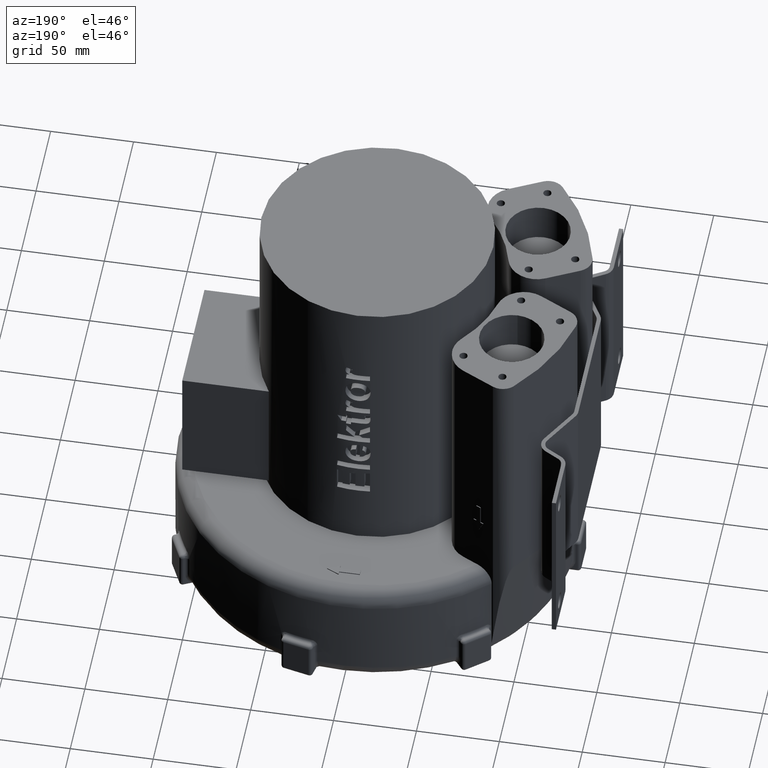
[diagram: clean part render]
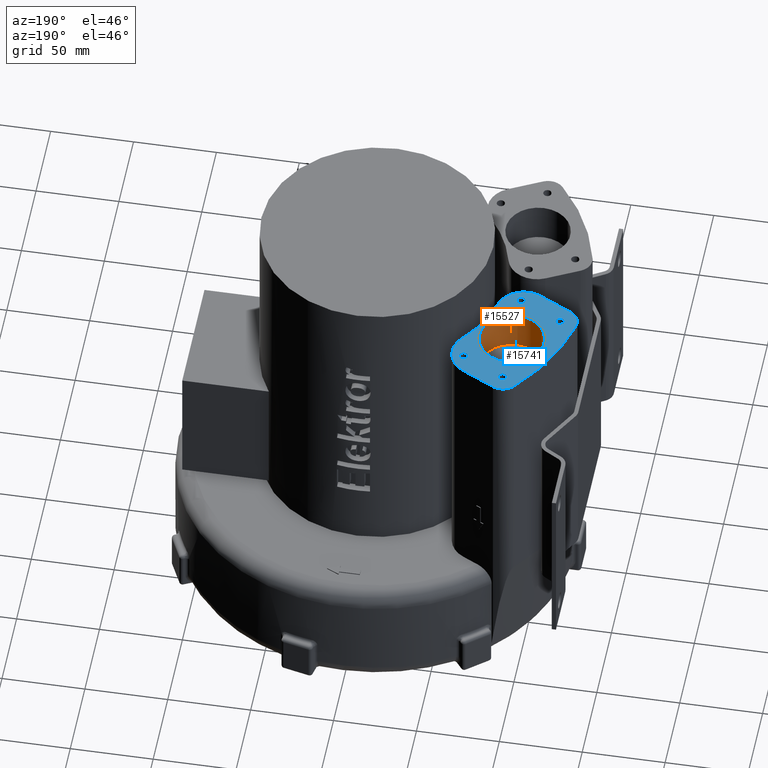
[diagram: same view with the hole feature highlighted: cylindrical wall and planar end face, labeled with their STEP entity ids]
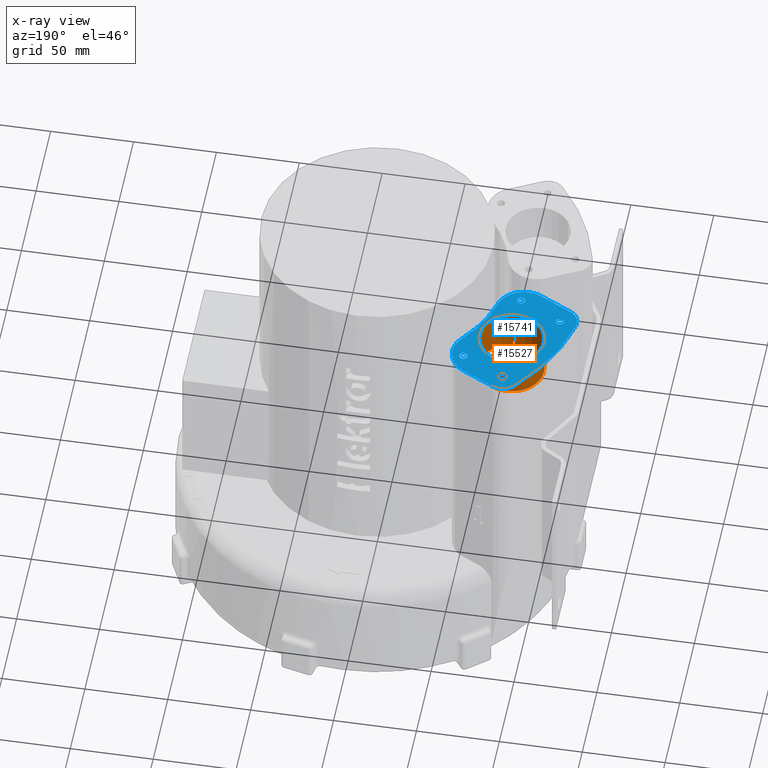
[diagram: x-ray of the same camera — body ghosted, the hole faces saturated]
A machine part, auxiliary view. The highlighted faces form one hole feature of diameter 38.952 mm: the cylindrical wall (entity #15527, orange) and its adjacent planar end face (entity #15741, blue) — they share a circular edge in the B-rep.
The next image is the same camera in x-ray (body ghosted, the hole faces saturated) — the bore reads through the body.
Wall:
#15500=CARTESIAN_POINT('',(-89.0,45.0,144.50000000000003));
#15501=DIRECTION('',(0.0,0.0,1.0));
#15502=DIRECTION('',(0.0,-1.0,0.0));
#15503=AXIS2_PLACEMENT_3D('',#15500,#15501,#15502);
#15504=CYLINDRICAL_SURFACE('',#15503,19.475999999999999);
#15505=CARTESIAN_POINT('',(-89.0,25.524000000000001,157.00000000000003));
#15506=VERTEX_POINT('',#15505);
#15507=CARTESIAN_POINT('',(-89.0,45.0,157.00000000000003));
#15508=DIRECTION('',(0.0,0.0,-1.0));
#15509=DIRECTION('',(0.0,-1.0,0.0));
#15510=AXIS2_PLACEMENT_3D('',#15507,#15508,#15509);
#15511=CIRCLE('',#15510,19.475999999999999);
#15512=EDGE_CURVE('',#15506,#15506,#15511,.T.);
#15513=ORIENTED_EDGE('',*,*,#15512,.F.);
#15514=EDGE_LOOP('',(#15513));
#15515=FACE_OUTER_BOUND('',#15514,.T.);
#15516=CARTESIAN_POINT('',(-89.0,25.524000000000001,132.00000000000003));
#15517=VERTEX_POINT('',#15516);
#15518=CARTESIAN_POINT('',(-89.0,45.0,132.00000000000003));
#15519=DIRECTION('',(0.0,0.0,1.0));
#15520=DIRECTION('',(0.0,-1.0,0.0));
#15521=AXIS2_PLACEMENT_3D('',#15518,#15519,#15520);
#15522=CIRCLE('',#15521,19.475999999999999);
#15523=EDGE_CURVE('',#15517,#15517,#15522,.T.);
#15524=ORIENTED_EDGE('',*,*,#15523,.F.);
#15525=EDGE_LOOP('',(#15524));
#15526=FACE_BOUND('',#15525,.T.);
#15527=ADVANCED_FACE('',(#15515,#15526),#15504,.F.);
End face:
#14806=CARTESIAN_POINT('',(-84.815140395372879,86.025530859816172,157.00000000000003));
#14807=VERTEX_POINT('',#14806);
#14814=CARTESIAN_POINT('',(-65.207563079482611,76.111587273130084,157.00000000000003));
#14815=VERTEX_POINT('',#14814);
#14816=CARTESIAN_POINT('',(-84.815140395372879,86.025530859816172,157.00000000000003));
#14817=DIRECTION('',(0.892412776152616,-0.451219942998513,0.0));
#14818=VECTOR('',#14817,21.971421566175657);
#14819=LINE('',#14816,#14818);
#14820=EDGE_CURVE('',#14807,#14815,#14819,.T.);
#14879=CARTESIAN_POINT('',(-96.897453369879898,83.635420310009494,157.00000000000003));
#14880=VERTEX_POINT('',#14879);
#14887=CARTESIAN_POINT('',(-89.327339825358024,77.101403098290007,157.00000000000003));
#14888=DIRECTION('',(0.0,0.0,-1.0));
#14889=DIRECTION('',(-0.19405841370693,0.980989975519398,0.0));
#14890=AXIS2_PLACEMENT_3D('',#14887,#14888,#14889);
#14891=CIRCLE('',#14890,10.0);
#14892=EDGE_CURVE('',#14880,#14807,#14891,.T.);
#14904=CARTESIAN_POINT('',(-124.79661187934727,28.457084591285113,157.00000000000003));
#14905=VERTEX_POINT('',#14904);
#14912=CARTESIAN_POINT('',(0.0,0.0,157.00000000000003));
#14913=DIRECTION('',(0.0,0.0,-1.0));
#14914=DIRECTION('',(-0.715369460263684,0.698746402725657,0.0));
#14915=AXIS2_PLACEMENT_3D('',#14912,#14913,#14914);
#14916=CIRCLE('',#14915,127.99999999999999);
#14917=EDGE_CURVE('',#14905,#14880,#14916,.T.);
#14929=CARTESIAN_POINT('',(-119.55907600625841,17.309747096064786,157.00000000000003));
#14930=VERTEX_POINT('',#14929);
#14937=CARTESIAN_POINT('',(-115.04687657627326,26.233874857590962,157.00000000000003));
#14938=DIRECTION('',(0.0,0.0,-1.0));
#14939=DIRECTION('',(-0.905077228144625,-0.425247235257376,0.0));
#14940=AXIS2_PLACEMENT_3D('',#14937,#14938,#14939);
#14941=CIRCLE('',#14940,9.999999999999998);
#14942=EDGE_CURVE('',#14930,#14905,#14941,.T.);
#15406=CARTESIAN_POINT('',(-75.767360562449326,18.52854752536744,157.00000000000003));
#15407=VERTEX_POINT('',#15406);
#15408=CARTESIAN_POINT('',(-99.95149869036814,7.395803509378696,157.00000000000003));
#15409=VERTEX_POINT('',#15408);
#15410=CARTESIAN_POINT('',(-92.280759659393411,22.566820703973164,157.00000000000003));
#15411=DIRECTION('',(0.0,0.0,-1.0));
#15412=DIRECTION('',(0.418154855307393,-0.908375757593108,0.0));
#15413=AXIS2_PLACEMENT_3D('',#15410,#15411,#15412);
#15414=CIRCLE('',#15413,17.0);
#15415=EDGE_CURVE('',#15407,#15409,#15414,.T.);
#15458=CARTESIAN_POINT('',(-59.836921732796569,50.035415432902909,157.00000000000003));
#15459=VERTEX_POINT('',#15458);
#15466=CARTESIAN_POINT('',(0.0,0.0,157.00000000000003));
#15467=DIRECTION('',(0.0,0.0,1.0));
#15468=DIRECTION('',(0.553409276409949,-0.832909462536845,0.0));
#15469=AXIS2_PLACEMENT_3D('',#15466,#15467,#15468);
#15470=CIRCLE('',#15469,78.000000000000014);
#15471=EDGE_CURVE('',#15459,#15407,#15470,.T.);
#15481=CARTESIAN_POINT('',(-72.878302110457355,60.9405700785356,157.00000000000003));
#15482=DIRECTION('',(0.0,0.0,-1.0));
#15483=DIRECTION('',(0.979442071708545,0.201725625955837,0.0));
#15484=AXIS2_PLACEMENT_3D('',#15481,#15482,#15483);
#15485=CIRCLE('',#15484,17.000000000000004);
#15486=EDGE_CURVE('',#14815,#15459,#15485,.T.);
#15505=CARTESIAN_POINT('',(-89.0,25.524000000000001,157.00000000000003));
#15506=VERTEX_POINT('',#15505);
#15507=CARTESIAN_POINT('',(-89.0,45.0,157.00000000000003));
#15508=DIRECTION('',(0.0,0.0,-1.0));
#15509=DIRECTION('',(0.0,-1.0,0.0));
#15510=AXIS2_PLACEMENT_3D('',#15507,#15508,#15509);
#15511=CIRCLE('',#15510,19.475999999999999);
#15512=EDGE_CURVE('',#15506,#15506,#15511,.T.);
#15559=CARTESIAN_POINT('',(-89.000000000000028,10.541499999999999,157.00000000000003));
#15560=VERTEX_POINT('',#15559);
#15561=CARTESIAN_POINT('',(-89.000000000000028,12.999999999999998,157.00000000000003));
#15562=DIRECTION('',(0.0,0.0,-1.0));
#15563=DIRECTION('',(0.0,-1.0,0.0));
#15564=AXIS2_PLACEMENT_3D('',#15561,#15562,#15563);
#15565=CIRCLE('',#15564,2.4585);
#15566=EDGE_CURVE('',#15560,#15560,#15565,.T.);
#15596=CARTESIAN_POINT('',(-114.77116428715061,23.571863965413225,157.00000000000003));
#15597=VERTEX_POINT('',#15596);
#15598=CARTESIAN_POINT('',(-114.77116428715061,26.030363965413223,157.00000000000003));
#15599=DIRECTION('',(0.0,0.0,-1.0));
#15600=DIRECTION('',(0.0,-1.0,0.0));
#15601=AXIS2_PLACEMENT_3D('',#15598,#15599,#15600);
#15602=CIRCLE('',#15601,2.4585);
#15603=EDGE_CURVE('',#15597,#15597,#15602,.T.);
#15633=CARTESIAN_POINT('',(-89.000000000000028,74.541499999999999,157.00000000000003));
#15634=VERTEX_POINT('',#15633);
#15635=CARTESIAN_POINT('',(-89.000000000000028,77.0,157.00000000000003));
#15636=DIRECTION('',(0.0,0.0,-1.0));
#15637=DIRECTION('',(0.0,-1.0,0.0));
#15638=AXIS2_PLACEMENT_3D('',#15635,#15636,#15637);
#15639=CIRCLE('',#15638,2.4585);
#15640=EDGE_CURVE('',#15634,#15634,#15639,.T.);
#15670=CARTESIAN_POINT('',(-63.228835712849396,61.511136034586784,157.00000000000003));
#15671=VERTEX_POINT('',#15670);
#15672=CARTESIAN_POINT('',(-63.228835712849396,63.969636034586784,157.00000000000003));
#15673=DIRECTION('',(0.0,0.0,-1.0));
#15674=DIRECTION('',(0.0,-1.0,0.0));
#15675=AXIS2_PLACEMENT_3D('',#15672,#15673,#15674);
#15676=CIRCLE('',#15675,2.4585);
#15677=EDGE_CURVE('',#15671,#15671,#15676,.T.);
#15701=CARTESIAN_POINT('',(-99.95149869036814,7.395803509378695,157.00000000000003));
#15702=DIRECTION('',(-0.892412776152615,0.451219942998513,0.0));
#15703=VECTOR('',#15702,21.97142156617566);
#15704=LINE('',#15701,#15703);
#15705=EDGE_CURVE('',#15409,#14930,#15704,.T.);
#15711=CARTESIAN_POINT('',(-87.089194191295647,44.033862231553954,157.00000000000003));
#15712=DIRECTION('',(0.0,0.0,-1.0));
#15713=DIRECTION('',(0.0,1.0,0.0));
#15714=AXIS2_PLACEMENT_3D('',#15711,#15712,#15713);
#15715=PLANE('',#15714);
#15716=ORIENTED_EDGE('',*,*,#15415,.F.);
#15717=ORIENTED_EDGE('',*,*,#15471,.F.);
#15718=ORIENTED_EDGE('',*,*,#15486,.F.);
#15719=ORIENTED_EDGE('',*,*,#14820,.F.);
#15720=ORIENTED_EDGE('',*,*,#14892,.F.);
#15721=ORIENTED_EDGE('',*,*,#14917,.F.);
#15722=ORIENTED_EDGE('',*,*,#14942,.F.);
#15723=ORIENTED_EDGE('',*,*,#15705,.F.);
#15724=EDGE_LOOP('',(#15716,#15717,#15718,#15719,#15720,#15721,#15722,#15723));
#15725=FACE_OUTER_BOUND('',#15724,.T.);
#15726=ORIENTED_EDGE('',*,*,#15512,.T.);
#15727=EDGE_LOOP('',(#15726));
#15728=FACE_BOUND('',#15727,.T.);
#15729=ORIENTED_EDGE('',*,*,#15566,.T.);
#15730=EDGE_LOOP('',(#15729));
#15731=FACE_BOUND('',#15730,.T.);
#15732=ORIENTED_EDGE('',*,*,#15603,.T.);
#15733=EDGE_LOOP('',(#15732));
#15734=FACE_BOUND('',#15733,.T.);
#15735=ORIENTED_EDGE('',*,*,#15640,.T.);
#15736=EDGE_LOOP('',(#15735));
#15737=FACE_BOUND('',#15736,.T.);
#15738=ORIENTED_EDGE('',*,*,#15677,.T.);
#15739=EDGE_LOOP('',(#15738));
#15740=FACE_BOUND('',#15739,.T.);
#15741=ADVANCED_FACE('',(#15725,#15728,#15731,#15734,#15737,#15740),#15715,.F.);